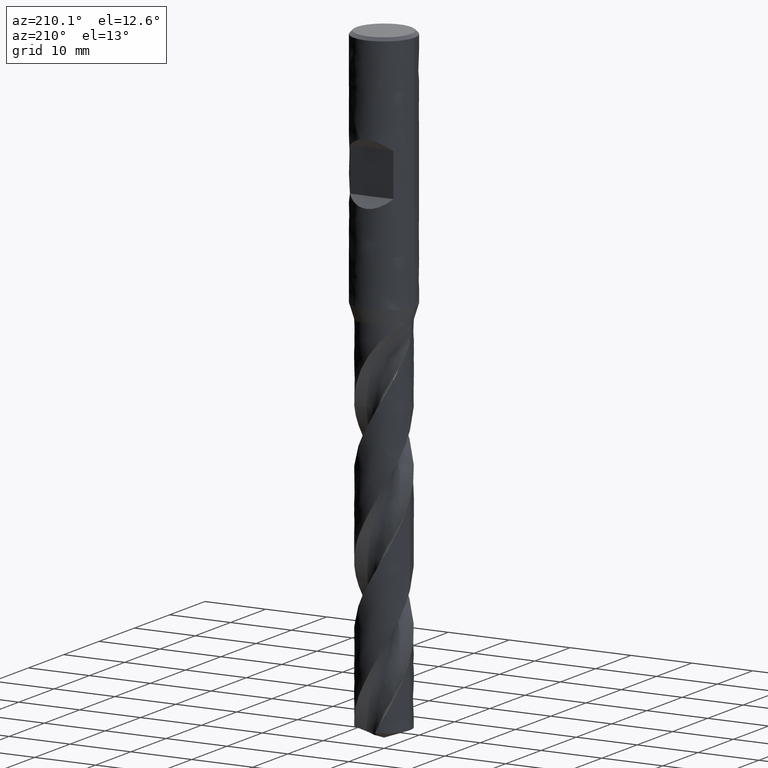
[diagram: clean part render]
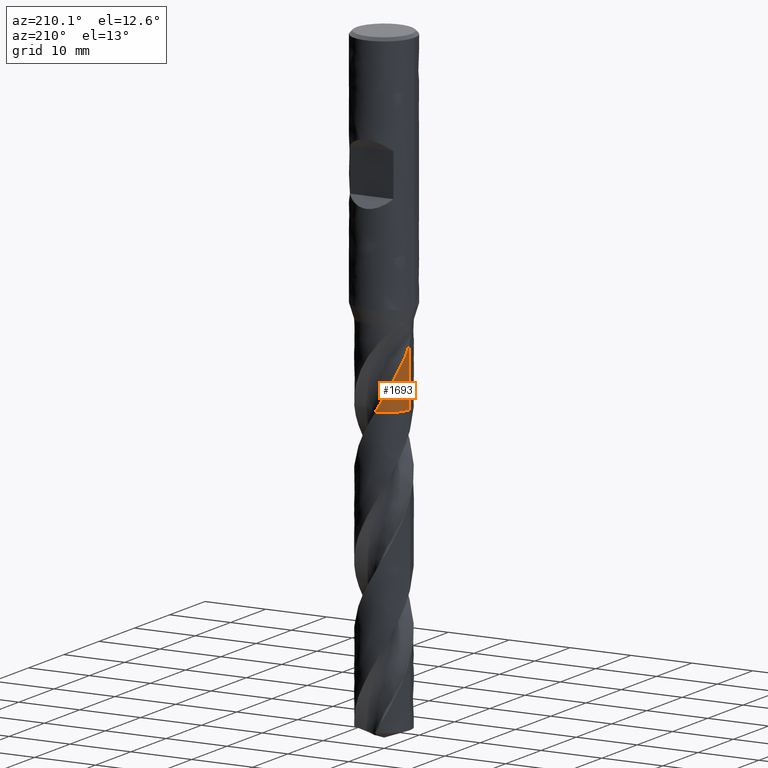
[diagram: same view with one face highlighted and labeled with its STEP entity id]
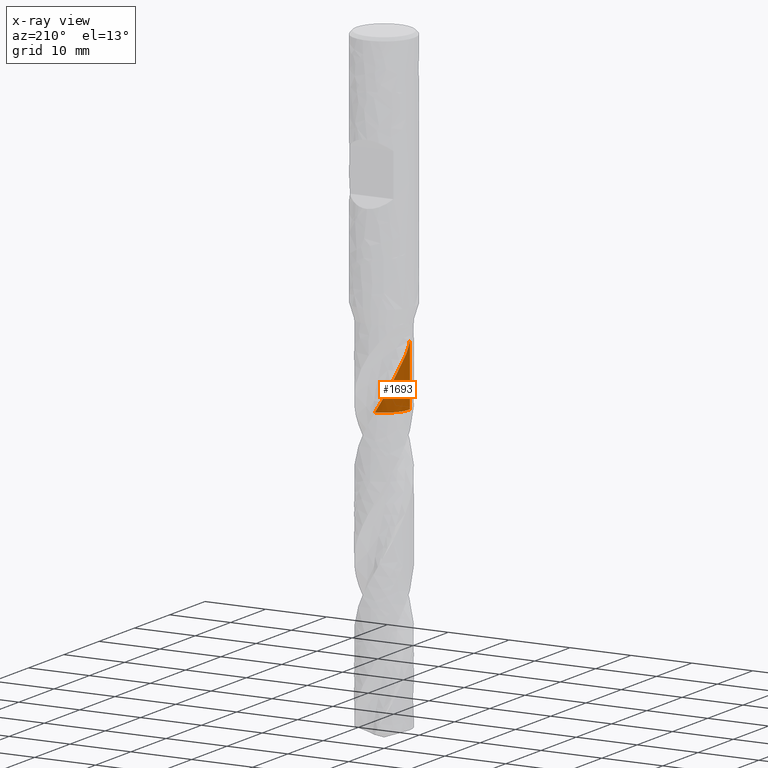
[diagram: x-ray of the same camera — body ghosted, the highlighted face saturated]
A machine part, auxiliary view. The second image highlights one B-rep face of the part: STEP entity #1693.
The next image is the same camera in x-ray: the body ghosted, the highlighted face saturated — about 0% of this face is hidden behind the body in this view.
In plain terms, the highlighted face is a freeform B-spline surface patch.
Its self-contained STEP definition (entity closure, byte-faithful):
#764 = VERTEX_POINT('', #765);
#765 = CARTESIAN_POINT('', (-0.900482394054548, 4.15350833127825, -54.75));
#772 = EDGE_CURVE('', #773, #764, #775, .T.);
#773 = VERTEX_POINT('', #774);
#774 = CARTESIAN_POINT('', (-3.06516109353694, 2.94402572520474, -50.329358537222));
#775 = B_SPLINE_CURVE_WITH_KNOTS('', 3, (#776, #777, #778, #779, #780, #781, #782, #783, #784, #785, #786, #787, #788, #789, #790, #791, #792, #793, #794, #795, #796, #797, #798, #799, #800, #801, #802, #803, #804, #805, #806, #807, #808, #809, #810, #811, #812), .UNSPECIFIED., .F., .U., (4, 3, 3, 3, 3, 3, 3, 3, 3, 3, 3, 3, 4), (0., 0.295571667884019, 0.738861036090191, 1.18213290757928, 1.62536798512298, 2.06854758775916, 2.51170228880951, 2.95486686415592, 3.39796791211282, 3.84103284195719, 4.28407376025169, 4.94826991755467, 5.0866072862183), .UNSPECIFIED.);
#776 = CARTESIAN_POINT('', (-3.06516109353694, 2.94402572520474, -50.329358537222));
#777 = CARTESIAN_POINT('', (-3.03261850275037, 2.97790731880221, -50.4159609284243));
#778 = CARTESIAN_POINT('', (-2.99940555434913, 3.01136245995872, -50.5024820743763));
#779 = CARTESIAN_POINT('', (-2.96552159122797, 3.04436884952542, -50.5889078347301));
#780 = CARTESIAN_POINT('', (-2.91470345729847, 3.09387082541687, -50.7185265528509));
#781 = CARTESIAN_POINT('', (-2.86236559449061, 3.14237169335537, -50.8479450374589));
#782 = CARTESIAN_POINT('', (-2.80857506322684, 3.18973448961229, -50.9771630111221));
#783 = CARTESIAN_POINT('', (-2.75478665508573, 3.23709541645048, -51.1063758845268));
#784 = CARTESIAN_POINT('', (-2.69953726249105, 3.28332577995617, -51.2354086190697));
#785 = CARTESIAN_POINT('', (-2.64290451293097, 3.32829622112129, -51.3642597269171));
#786 = CARTESIAN_POINT('', (-2.58627646419318, 3.37326292949834, -51.4931001394308));
#787 = CARTESIAN_POINT('', (-2.52825662244168, 3.41697679554098, -51.6217800861337));
#788 = CARTESIAN_POINT('', (-2.46893279176026, 3.45931653217391, -51.7502970985403));
#789 = CARTESIAN_POINT('', (-2.40961638599664, 3.50165096960312, -51.8787980258722));
#790 = CARTESIAN_POINT('', (-2.34898676502986, 3.54261863624505, -52.007157407415));
#791 = CARTESIAN_POINT('', (-2.28713270504749, 3.58211166625258, -52.1353662400079));
#792 = CARTESIAN_POINT('', (-2.2252821205504, 3.621602477207, -52.2635678687421));
#793 = CARTESIAN_POINT('', (-2.16218703814857, 3.65963015213111, -52.3916343028312));
#794 = CARTESIAN_POINT('', (-2.09801078762549, 3.69605881108614, -52.5195992911604));
#795 = CARTESIAN_POINT('', (-2.03383310713835, 3.73248828173821, -52.6475671307832));
#796 = CARTESIAN_POINT('', (-1.96856275895701, 3.76732322801114, -52.7754553704605));
#797 = CARTESIAN_POINT('', (-1.9024656145397, 3.80041110743221, -52.9033538017164));
#798 = CARTESIAN_POINT('', (-1.8363779451104, 3.8334942437246, -53.0312338988051));
#799 = CARTESIAN_POINT('', (-1.76948214748931, 3.86482581254872, -53.1591639436563));
#800 = CARTESIAN_POINT('', (-1.7018624730335, 3.89437596064893, -53.2871083126714));
#801 = CARTESIAN_POINT('', (-1.63424831040175, 3.92392370005348, -53.4150422526679));
#802 = CARTESIAN_POINT('', (-1.56589685490049, 3.95169674991066, -53.5430108086235));
#803 = CARTESIAN_POINT('', (-1.49686551966453, 3.97767439794152, -53.6709626489919));
#804 = CARTESIAN_POINT('', (-1.42783792552663, 4.00365063813451, -53.7989075551126));
#805 = CARTESIAN_POINT('', (-1.35810959800893, 4.02783844408279, -53.9268519307771));
#806 = CARTESIAN_POINT('', (-1.28779352300334, 4.05019602514627, -54.0547787105148));
#807 = CARTESIAN_POINT('', (-1.18237737544945, 4.08371396630196, -54.2465634238658));
#808 = CARTESIAN_POINT('', (-1.07561064363921, 4.11312493794379, -54.4383721096446));
#809 = CARTESIAN_POINT('', (-0.967905383179546, 4.13831598228212, -54.6301594423181));
#810 = CARTESIAN_POINT('', (-0.945472759685123, 4.14356271963424, -54.6701045017005));
#811 = CARTESIAN_POINT('', (-0.922995938092076, 4.1486273852402, -54.710054095086));
#812 = CARTESIAN_POINT('', (-0.900482394054548, 4.15350833127825, -54.75));
#815 = VERTEX_POINT('', #816);
#816 = CARTESIAN_POINT('', (-3.73255713747947, 2.03236739184899, -48.3463346180256));
#825 = EDGE_CURVE('', #815, #826, #828, .T.);
#826 = VERTEX_POINT('', #827);
#827 = CARTESIAN_POINT('', (-4.25, 3.00049675391278E-15, -44.7518306666353));
#828 = B_SPLINE_CURVE_WITH_KNOTS('', 3, (#829, #830, #831, #832, #833, #834, #835, #836, #837, #838, #839, #840, #841, #842, #843, #844, #845, #846, #847, #848, #849, #850, #851, #852, #853, #854, #855, #856, #857, #858, #859, #860, #861, #862, #863, #864, #865, #866, #867, #868, #869, #870, #871, #872, #873, #874), .UNSPECIFIED., .F., .U., (4, 3, 3, 3, 3, 3, 3, 3, 3, 3, 3, 3, 3, 3, 3, 4), (0., 0.196981854982805, 0.492366603504391, 0.787634984461821, 1.08276895990144, 1.37775759834243, 1.67260533327669, 1.9673160900908, 2.26189167868859, 2.55632996496586, 2.85064643401126, 3.14485765032368, 3.43898123285581, 3.73305142723269, 4.02710681471754, 4.18442927862121), .UNSPECIFIED.);
#829 = CARTESIAN_POINT('', (-3.73255713747948, 2.03236739184898, -48.3463346180256));
#830 = CARTESIAN_POINT('', (-3.74975883135192, 2.00077551259633, -48.2914040100518));
#831 = CARTESIAN_POINT('', (-3.76667110829638, 1.96875926325415, -48.2366244019477));
#832 = CARTESIAN_POINT('', (-3.78325121746856, 1.93636520974832, -48.1819705633225));
#833 = CARTESIAN_POINT('', (-3.8081139713436, 1.88778860684625, -48.1000142309515));
#834 = CARTESIAN_POINT('', (-3.83223191330587, 1.83835545745205, -48.0183320395202));
#835 = CARTESIAN_POINT('', (-3.85547771049736, 1.78823701557094, -47.9368307635068));
#836 = CARTESIAN_POINT('', (-3.87871434994862, 1.73813831797598, -47.855361595126));
#837 = CARTESIAN_POINT('', (-3.90108236723053, 1.68734847246667, -47.7740624107607));
#838 = CARTESIAN_POINT('', (-3.92247595082462, 1.63605697186942, -47.6928309952994));
#839 = CARTESIAN_POINT('', (-3.94385979610649, 1.58478881905047, -47.6116365561999));
#840 = CARTESIAN_POINT('', (-3.96427264737088, 1.5330130823718, -47.530499614143));
#841 = CARTESIAN_POINT('', (-3.98363228215928, 1.48093681179802, -47.4493115863483));
#842 = CARTESIAN_POINT('', (-4.00298238340884, 1.42888618587886, -47.3681635391227));
#843 = CARTESIAN_POINT('', (-4.02128191427265, 1.37653084587621, -47.2869527920002));
#844 = CARTESIAN_POINT('', (-4.0384749179293, 1.3240922691635, -47.2055691576314));
#845 = CARTESIAN_POINT('', (-4.05565970922048, 1.27167874012511, -47.1242243967579));
#846 = CARTESIAN_POINT('', (-4.0717414689277, 1.21917512944479, -47.0426963541764));
#847 = CARTESIAN_POINT('', (-4.08669475234389, 1.16680161174287, -46.9608863354859));
#848 = CARTESIAN_POINT('', (-4.1016410888773, 1.11445242533181, -46.8791143234722));
#849 = CARTESIAN_POINT('', (-4.11546228694838, 1.06222561959141, -46.7970491044932));
#850 = CARTESIAN_POINT('', (-4.12816037534308, 1.01034247433607, -46.7146028187553));
#851 = CARTESIAN_POINT('', (-4.14085263979712, 0.958483125131744, -46.6321943467624));
#852 = CARTESIAN_POINT('', (-4.15242511356933, 0.906957367121322, -46.5493929527317));
#853 = CARTESIAN_POINT('', (-4.16290243033057, 0.856004296454077, -46.4661123886357));
#854 = CARTESIAN_POINT('', (-4.17337486359175, 0.805074975123542, -46.3828706417912));
#855 = CARTESIAN_POINT('', (-4.18275516455306, 0.75470854956549, -46.2991348867065));
#856 = CARTESIAN_POINT('', (-4.19109365843658, 0.705148173232173, -46.2148324865937));
#857 = CARTESIAN_POINT('', (-4.19942870245542, 0.655608301392111, -46.1305649647067));
#858 = CARTESIAN_POINT('', (-4.20672471318963, 0.606862805952504, -46.0457133262881));
#859 = CARTESIAN_POINT('', (-4.21305541171341, 0.559163748675063, -45.9602182428227));
#860 = CARTESIAN_POINT('', (-4.21938384626832, 0.511481749417362, -45.8747537338992));
#861 = CARTESIAN_POINT('', (-4.22474936091984, 0.464832409387028, -45.7886246112973));
#862 = CARTESIAN_POINT('', (-4.2292469429073, 0.419488135600258, -45.7017829564669));
#863 = CARTESIAN_POINT('', (-4.23374318524457, 0.374157368063103, -45.6149671682999));
#864 = CARTESIAN_POINT('', (-4.23737352522732, 0.330116688412893, -45.5274121515397));
#865 = CARTESIAN_POINT('', (-4.24025417425521, 0.287653502867225, -45.4390908319718));
#866 = CARTESIAN_POINT('', (-4.24313430039903, 0.245198025071893, -45.3507855441423));
#867 = CARTESIAN_POINT('', (-4.24526625260626, 0.204302378325553, -45.2616804730407));
#868 = CARTESIAN_POINT('', (-4.24678494543823, 0.165280450142157, -45.1717718011952));
#869 = CARTESIAN_POINT('', (-4.24830356180166, 0.126260486773585, -45.0818676563912));
#870 = CARTESIAN_POINT('', (-4.24920980749626, 0.0890940078819233, -44.9911167445184));
#871 = CARTESIAN_POINT('', (-4.24965510038525, 0.0541435847503208, -44.8995422468292));
#872 = CARTESIAN_POINT('', (-4.2498933363688, 0.0354447718206547, -44.850549008751));
#873 = CARTESIAN_POINT('', (-4.25, 0.0173764142622369, -44.8013089443553));
#874 = CARTESIAN_POINT('', (-4.25, 2.51713232036443E-15, -44.7518306666353));
#1075 = EDGE_CURVE('', #815, #773, #1076, .T.);
#1076 = B_SPLINE_CURVE_WITH_KNOTS('', 3, (#1077, #1078, #1079, #1080, #1081, #1082, #1083, #1084, #1085, #1086, #1087, #1088, #1089, #1090, #1091, #1092, #1093, #1094, #1095, #1096, #1097, #1098, #1099, #1100, #1101, #1102, #1103, #1104, #1105, #1106, #1107), .UNSPECIFIED., .F., .U., (4, 3, 3, 3, 3, 3, 3, 3, 3, 3, 4), (0., 0.295718159758477, 0.591496666186194, 0.788632868022489, 0.985749784586178, 1.182816478944, 1.37985838119442, 1.5769030221386, 1.70827926176468, 2.15173886292003, 2.284888805737), .UNSPECIFIED.);
#1077 = CARTESIAN_POINT('', (-3.73255713747947, 2.03236739184899, -48.3463346180256));
#1078 = CARTESIAN_POINT('', (-3.70673316878383, 2.0797945642488, -48.4287989562046));
#1079 = CARTESIAN_POINT('', (-3.68034052085234, 2.12611243851063, -48.5117337650582));
#1080 = CARTESIAN_POINT('', (-3.65349841736779, 2.17127826735624, -48.5951371852372));
#1081 = CARTESIAN_POINT('', (-3.62665083626381, 2.21645331311073, -48.678557625401));
#1082 = CARTESIAN_POINT('', (-3.5993480540786, 2.26048445840834, -48.7624618147542));
#1083 = CARTESIAN_POINT('', (-3.57173281200502, 2.30330734372342, -48.84686647165));
#1084 = CARTESIAN_POINT('', (-3.55332726928684, 2.33184877178269, -48.9031221261892));
#1085 = CARTESIAN_POINT('', (-3.53478151508391, 2.35985598386388, -48.95960629693));
#1086 = CARTESIAN_POINT('', (-3.51614614073222, 2.38730314728024, -49.0163288835179));
#1087 = CARTESIAN_POINT('', (-3.49751258942608, 2.41474762561884, -49.0730459210968));
#1088 = CARTESIAN_POINT('', (-3.4787924981868, 2.44162877101911, -49.1300099590344));
#1089 = CARTESIAN_POINT('', (-3.45999080093863, 2.46798777497382, -49.1871845169111));
#1090 = CARTESIAN_POINT('', (-3.44119389405917, 2.49434006308016, -49.244344507634));
#1091 = CARTESIAN_POINT('', (-3.42231419300028, 2.52017262834281, -49.3017189718405));
#1092 = CARTESIAN_POINT('', (-3.4033309335469, 2.54555270162746, -49.3592560822712));
#1093 = CARTESIAN_POINT('', (-3.38435006229518, 2.57092958195501, -49.4167859542072));
#1094 = CARTESIAN_POINT('', (-3.36526475982561, 2.59585568934378, -49.4744815819956));
#1095 = CARTESIAN_POINT('', (-3.34602556800748, 2.6204222747947, -49.5322767554193));
#1096 = CARTESIAN_POINT('', (-3.32678610878301, 2.64498920169764, -49.5900727321406));
#1097 = CARTESIAN_POINT('', (-3.30739200629021, 2.66919791828288, -49.6479704261246));
#1098 = CARTESIAN_POINT('', (-3.28776403993281, 2.69315941186643, -49.705889812998));
#1099 = CARTESIAN_POINT('', (-3.27467741956502, 2.7091353394925, -49.7445066016222));
#1100 = CARTESIAN_POINT('', (-3.26148565380957, 2.72500244906041, -49.783133073287));
#1101 = CARTESIAN_POINT('', (-3.24815932534635, 2.74079568687007, -49.8217430314453));
#1102 = CARTESIAN_POINT('', (-3.20317639447557, 2.79410565342076, -49.9520706819721));
#1103 = CARTESIAN_POINT('', (-3.15668931435394, 2.84653412973197, -50.0822517763378));
#1104 = CARTESIAN_POINT('', (-3.10874438256042, 2.89796624616283, -50.2122776737966));
#1105 = CARTESIAN_POINT('', (-3.09434878731332, 2.91340887801448, -50.2513183006457));
#1106 = CARTESIAN_POINT('', (-3.07982096988222, 2.92876265116808, -50.2903456523981));
#1107 = CARTESIAN_POINT('', (-3.06516109353694, 2.94402572520474, -50.329358537222));
#1693 = ADVANCED_FACE('', (#1694), #1714, .T.);
#1694 = FACE_OUTER_BOUND('', #1695, .T.);
#1695 = EDGE_LOOP('', (#1696, #1705, #1711, #1712, #1713));
#1696 = ORIENTED_EDGE('', *, *, #1697, .F.);
#1697 = EDGE_CURVE('', #1698, #764, #1700, .T.);
#1698 = VERTEX_POINT('', #1699);
#1699 = CARTESIAN_POINT('', (-4.25, 3.61270805748469E-15, -54.75));
#1700 = CIRCLE('', #1701, 4.25);
#1701 = AXIS2_PLACEMENT_3D('', #1702, #1703, #1704);
#1702 = CARTESIAN_POINT('', (2.05279620251842E-31, 3.35247061266588E-15, -54.75));
#1703 = DIRECTION('', (3.74939945665464E-33, 6.12323399573677E-17, -1.));
#1704 = DIRECTION('', (-1., 6.12323399573677E-17, 0.));
#1705 = ORIENTED_EDGE('', *, *, #1706, .F.);
#1706 = EDGE_CURVE('', #826, #1698, #1707, .T.);
#1707 = LINE('', #1708, #1709);
#1708 = CARTESIAN_POINT('', (-4.25, 3.00049675391278E-15, -44.7518306666353));
#1709 = VECTOR('', #1710, 9.99816933336468);
#1710 = DIRECTION('', (0., 6.12211303571914E-16, -9.99816933336468));
#1711 = ORIENTED_EDGE('', *, *, #825, .F.);
#1712 = ORIENTED_EDGE('', *, *, #1075, .T.);
#1713 = ORIENTED_EDGE('', *, *, #772, .T.);
#1714 = (
   BOUNDED_SURFACE ()
   B_SPLINE_SURFACE (2, 1, ((#1715, #1716), (#1717, #1718), (#1719, #1720), (#1721, #1722), (#1723, #1724), (#1725, #1726), (#1727, #1728), (#1729, #1730), (#1731, #1732)), .UNSPECIFIED., .T., .F., .U.)
   B_SPLINE_SURFACE_WITH_KNOTS ((3, 2, 2, 2, 3), (2, 2), (0., 6.67588438887831, 13.3517687777566, 20.0276531666349, 26.7035375555132), (0., 0.214454659488145), .UNSPECIFIED.)
   GEOMETRIC_REPRESENTATION_ITEM ()
   RATIONAL_B_SPLINE_SURFACE (((1., 1.), (0.707106781186548, 0.707106781186548), (1., 1.), (0.707106781186548, 0.707106781186548), (1., 1.), (0.707106781186548, 0.707106781186548), (1., 1.), (0.707106781186548, 0.707106781186548), (1., 1.)))
   REPRESENTATION_ITEM ('')
   SURFACE ()
);
#1715 = CARTESIAN_POINT('', (-4.25, 2.83199572302825E-15, -42.));
#1716 = CARTESIAN_POINT('', (-4.25, 3.61270805748469E-15, -54.75));
#1717 = CARTESIAN_POINT('', (-4.25, 4.25, -42.));
#1718 = CARTESIAN_POINT('', (-4.25, 4.25, -54.75));
#1719 = CARTESIAN_POINT('', (1.4791141972894E-31, 4.25, -42.));
#1720 = CARTESIAN_POINT('', (2.46519032881566E-31, 4.25, -54.75));
#1721 = CARTESIAN_POINT('', (4.25, 4.25, -42.));
#1722 = CARTESIAN_POINT('', (4.25, 4.25, -54.75));
#1723 = CARTESIAN_POINT('', (4.25, 2.83199572302825E-15, -42.));
#1724 = CARTESIAN_POINT('', (4.25, 3.61270805748469E-15, -54.75));
#1725 = CARTESIAN_POINT('', (4.25, -4.25, -42.));
#1726 = CARTESIAN_POINT('', (4.25, -4.24999999999999, -54.75));
#1727 = CARTESIAN_POINT('', (5.20474889637625E-16, -4.25, -42.));
#1728 = CARTESIAN_POINT('', (5.20474889637625E-16, -4.25, -54.75));
#1729 = CARTESIAN_POINT('', (-4.25, -4.25, -42.));
#1730 = CARTESIAN_POINT('', (-4.25, -4.25, -54.75));
#1731 = CARTESIAN_POINT('', (-4.25, 2.83199572302825E-15, -42.));
#1732 = CARTESIAN_POINT('', (-4.25, 3.61270805748469E-15, -54.75));